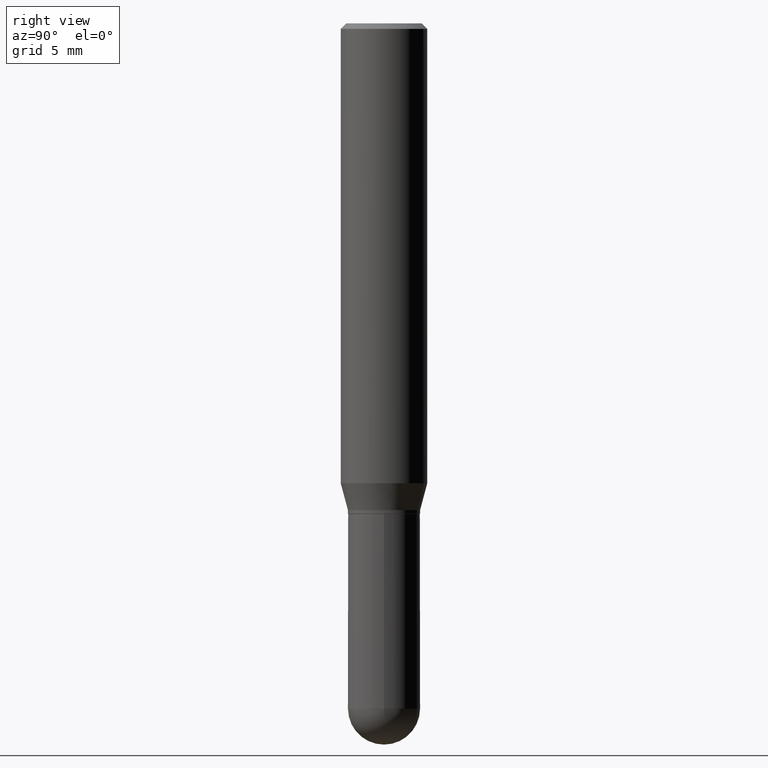
[diagram: clean part render]
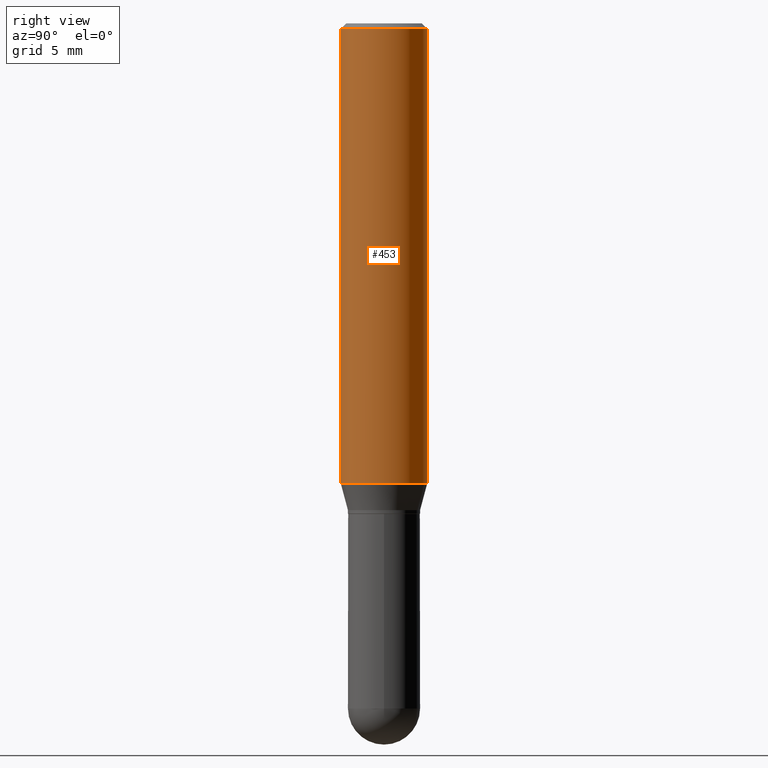
[diagram: same view with one face highlighted and labeled with its STEP entity id]
A machine part, right view. The second image highlights one B-rep face of the part: STEP entity #453.
In plain terms, the highlighted cylindrical surface (partial cylindrical patch) has radius 2.9997 mm, axis along (-0, 0, 1).
Its self-contained STEP definition (entity closure, byte-faithful):
#8 = EDGE_CURVE ( 'NONE', #118, #463, #145, .T. ) ;
#14 = ORIENTED_EDGE ( 'NONE', *, *, #8, .F. ) ;
#17 = FACE_OUTER_BOUND ( 'NONE', #107, .T. ) ;
#42 = CIRCLE ( 'NONE', #315, 0.1180999999999999966 ) ;
#58 = ORIENTED_EDGE ( 'NONE', *, *, #222, .F. ) ;
#99 = VERTEX_POINT ( 'NONE', #153 ) ;
#100 = CARTESIAN_POINT ( 'NONE',  ( -8.246878922347475723E-16, -0.1181000000000000522, -0.01499999999999973056 ) ) ;
#107 = EDGE_LOOP ( 'NONE', ( #328, #217, #58, #14 ) ) ;
#113 = DIRECTION ( 'NONE',  ( -6.982962677686265922E-15, -1.000000000000000000, 4.626330217890369336E-15 ) ) ;
#116 = DIRECTION ( 'NONE',  ( -6.982962677686265922E-15, -1.000000000000000000, 3.487819265831411744E-15 ) ) ;
#118 = VERTEX_POINT ( 'NONE', #462 ) ;
#120 = CARTESIAN_POINT ( 'NONE',  ( 8.391509709326781971E-16, 0.1180999999999999966, -4.123703489917239120E-16 ) ) ;
#124 = EDGE_CURVE ( 'NONE', #247, #99, #425, .T. ) ;
#145 = LINE ( 'NONE', #305, #510 ) ;
#153 = CARTESIAN_POINT ( 'NONE',  ( 8.391509709327091599E-16, 0.1180999999999999411, -0.01500000000000055456 ) ) ;
#174 = CARTESIAN_POINT ( 'NONE',  ( 0.000000000000000000, 0.000000000000000000, 0.000000000000000000 ) ) ;
#180 = DIRECTION ( 'NONE',  ( -2.445312692479667883E-29, 3.491704902554816982E-15, 1.000000000000000000 ) ) ;
#193 = EDGE_CURVE ( 'NONE', #118, #247, #337, .T. ) ;
#217 = ORIENTED_EDGE ( 'NONE', *, *, #124, .T. ) ;
#219 = VECTOR ( 'NONE', #468, 39.37007874015748143 ) ;
#222 = EDGE_CURVE ( 'NONE', #463, #99, #42, .T. ) ;
#247 = VERTEX_POINT ( 'NONE', #362 ) ;
#253 = AXIS2_PLACEMENT_3D ( 'NONE', #355, #279, #113 ) ;
#279 = DIRECTION ( 'NONE',  ( -2.445312692479667883E-29, 3.491704902554816982E-15, 1.000000000000000000 ) ) ;
#305 = CARTESIAN_POINT ( 'NONE',  ( -8.246878922347479668E-16, -0.1180999999999999966, 4.123703489917239120E-16 ) ) ;
#315 = AXIS2_PLACEMENT_3D ( 'NONE', #316, #508, #116 ) ;
#316 = CARTESIAN_POINT ( 'NONE',  ( 3.667969038719537049E-31, -5.237557353832276132E-17, -0.01500000000000014343 ) ) ;
#328 = ORIENTED_EDGE ( 'NONE', *, *, #193, .T. ) ;
#332 = DIRECTION ( 'NONE',  ( -2.445312692479667883E-29, 3.491704902554816982E-15, 1.000000000000000000 ) ) ;
#337 = CIRCLE ( 'NONE', #253, 0.1180999999999999966 ) ;
#341 = CYLINDRICAL_SURFACE ( 'NONE', #357, 0.1180999999999999966 ) ;
#355 = CARTESIAN_POINT ( 'NONE',  ( 3.069515929976998063E-29, -4.383015658542372764E-15, -1.255265201631271754 ) ) ;
#357 = AXIS2_PLACEMENT_3D ( 'NONE', #174, #332, #496 ) ;
#362 = CARTESIAN_POINT ( 'NONE',  ( 8.391509709327087654E-16, 0.1180999999999955974, -1.255265201631272420 ) ) ;
#425 = LINE ( 'NONE', #120, #219 ) ;
#453 = ADVANCED_FACE ( 'NONE', ( #17 ), #341, .T. ) ;
#462 = CARTESIAN_POINT ( 'NONE',  ( -8.246878922347173984E-16, -0.1181000000000044098, -1.255265201631271310 ) ) ;
#463 = VERTEX_POINT ( 'NONE', #100 ) ;
#468 = DIRECTION ( 'NONE',  ( -2.445312692479667883E-29, 3.491704902554816982E-15, 1.000000000000000000 ) ) ;
#496 = DIRECTION ( 'NONE',  ( -6.982962677686265922E-15, -1.000000000000000000, 3.491704902554817376E-15 ) ) ;
#508 = DIRECTION ( 'NONE',  ( -2.445312692479667883E-29, 3.491704902554816982E-15, 1.000000000000000000 ) ) ;
#510 = VECTOR ( 'NONE', #180, 39.37007874015748143 ) ;